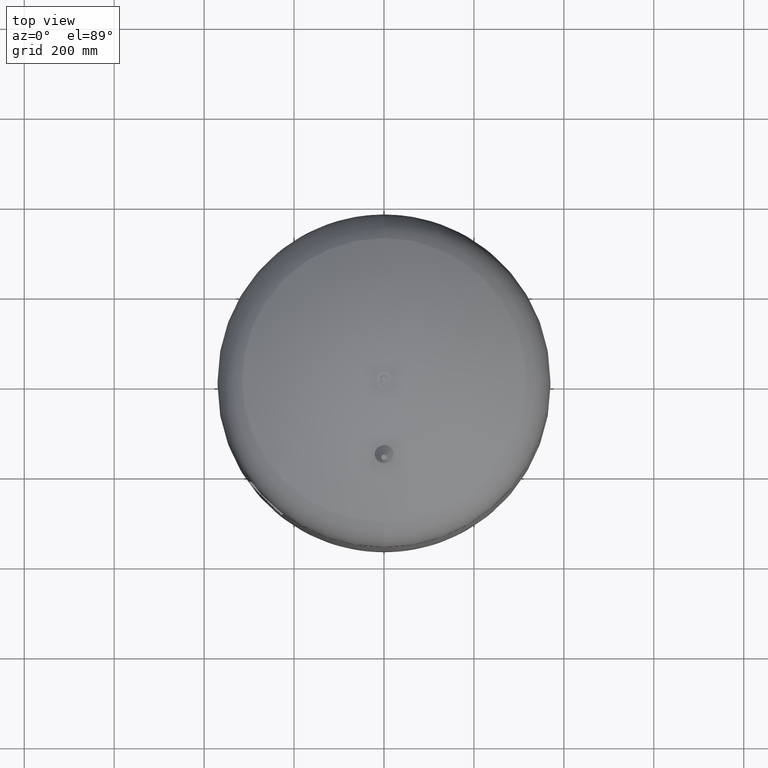
[diagram: clean part render]
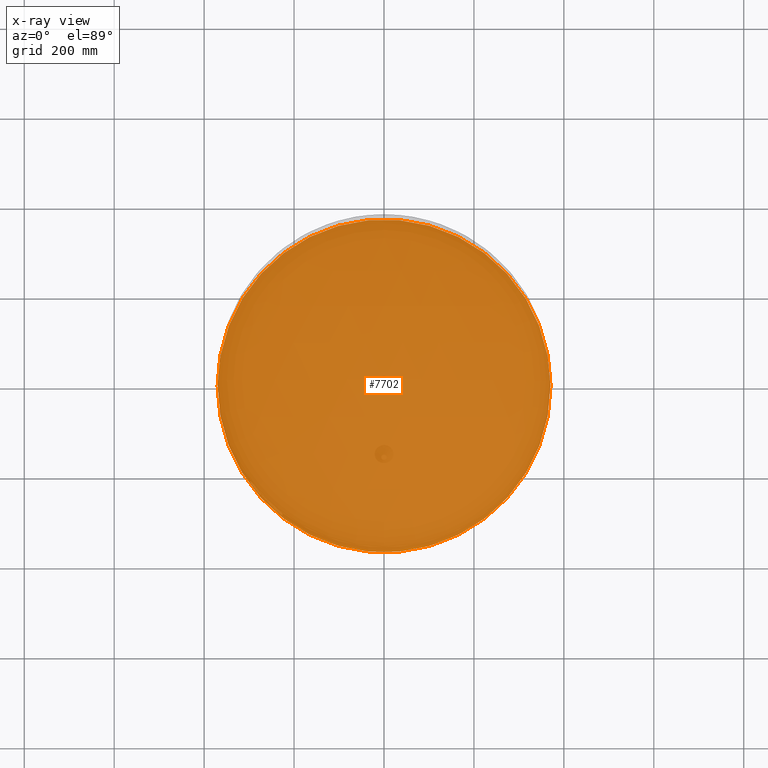
[diagram: x-ray — body ghosted, one internal face saturated and labeled with its STEP entity id]
A machine part, top view, then the same camera in x-ray: the body is ghosted and one INTERNAL B-rep face — a face not visible from any outside direction — is saturated and labeled: STEP entity #7702.
In plain terms, the highlighted planar face has unit normal (0, 0, 1).
Its self-contained STEP definition (entity closure, byte-faithful):
#7586=CARTESIAN_POINT('',(370.0,0.0,375.0));
#7587=VERTEX_POINT('',#7586);
#7603=CARTESIAN_POINT('',(-370.0,4.531044E-014,375.0));
#7604=VERTEX_POINT('',#7603);
#7611=CARTESIAN_POINT('',(-1.668796E-014,0.0,375.0));
#7612=DIRECTION('',(0.0,0.0,-1.0));
#7613=DIRECTION('',(1.0,0.0,0.0));
#7614=AXIS2_PLACEMENT_3D('',#7611,#7612,#7613);
#7615=CIRCLE('',#7614,370.0);
#7616=EDGE_CURVE('',#7587,#7604,#7615,.T.);
#7687=CARTESIAN_POINT('',(0.0,0.0,375.0));
#7688=DIRECTION('',(0.0,0.0,1.0));
#7689=DIRECTION('',(1.0,0.0,0.0));
#7690=AXIS2_PLACEMENT_3D('',#7687,#7688,#7689);
#7691=PLANE('',#7690);
#7692=CARTESIAN_POINT('',(-1.668796E-014,0.0,375.0));
#7693=DIRECTION('',(0.0,0.0,-1.0));
#7694=DIRECTION('',(1.0,0.0,0.0));
#7695=AXIS2_PLACEMENT_3D('',#7692,#7693,#7694);
#7696=CIRCLE('',#7695,370.0);
#7697=EDGE_CURVE('',#7604,#7587,#7696,.T.);
#7698=ORIENTED_EDGE('',*,*,#7697,.T.);
#7699=ORIENTED_EDGE('',*,*,#7616,.T.);
#7700=EDGE_LOOP('',(#7698,#7699));
#7701=FACE_OUTER_BOUND('',#7700,.T.);
#7702=ADVANCED_FACE('',(#7701),#7691,.F.);